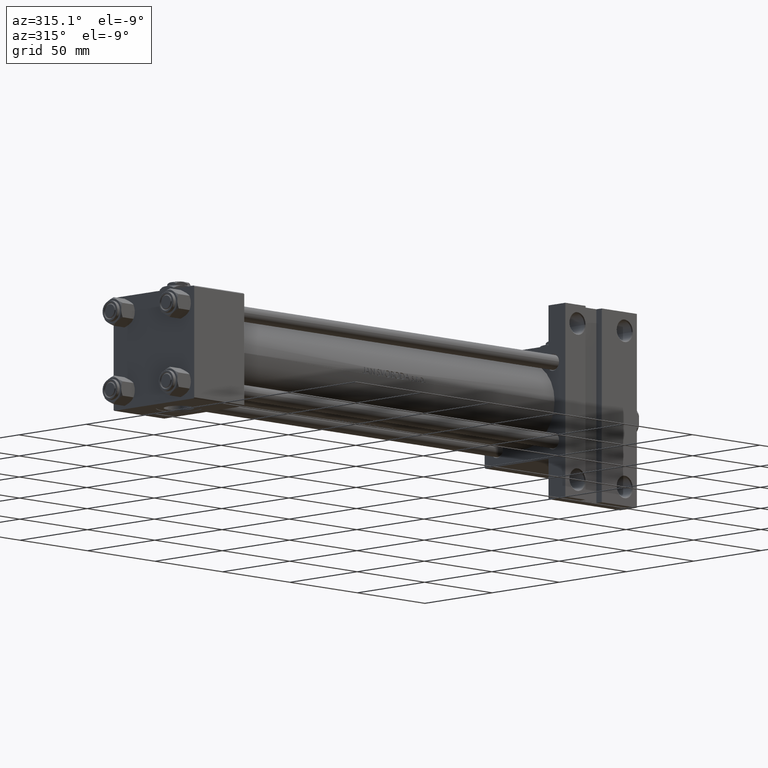
[diagram: clean part render]
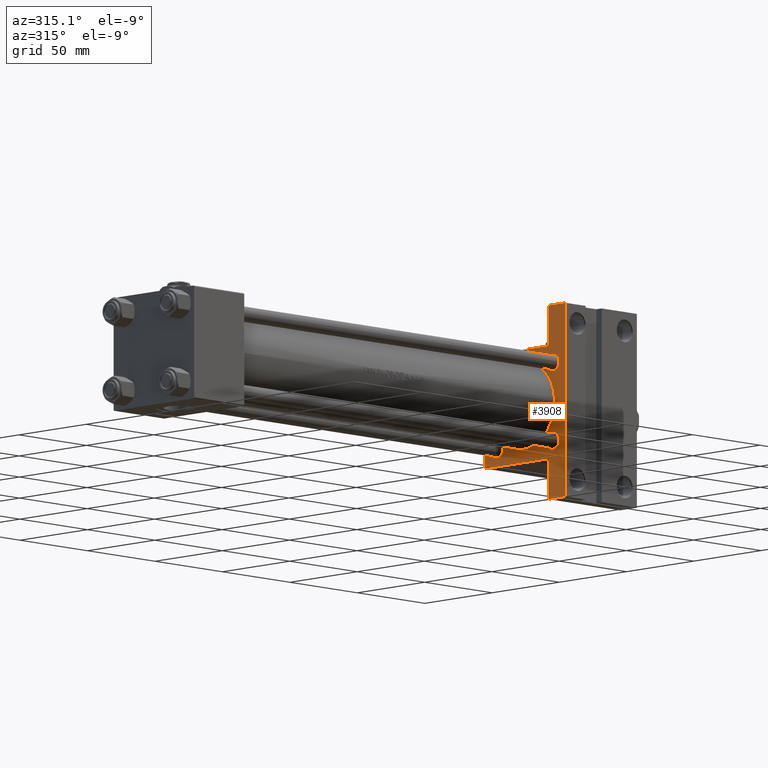
[diagram: same view with one face highlighted and labeled with its STEP entity id]
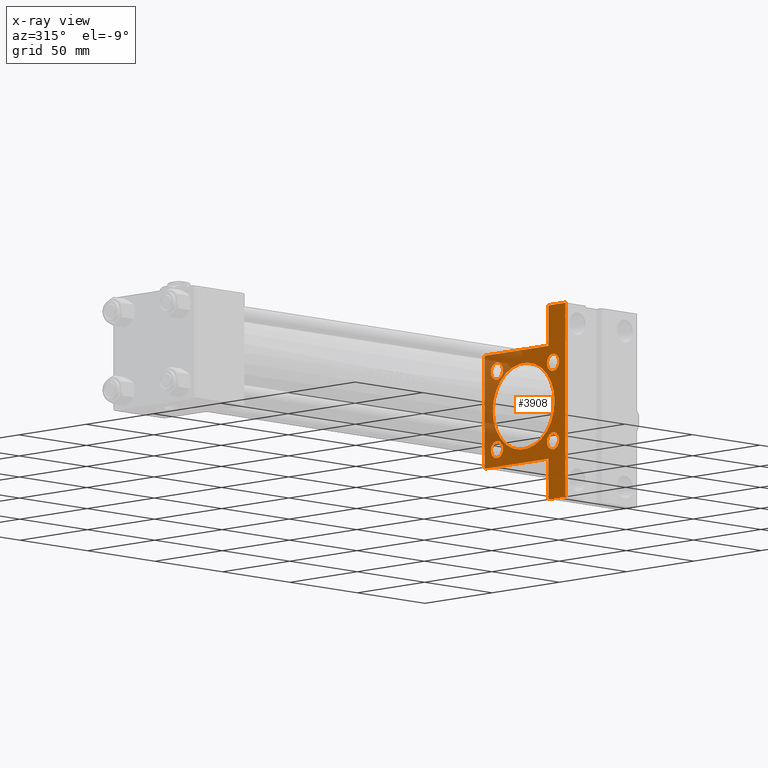
[diagram: x-ray of the same camera — body ghosted, the highlighted face saturated]
A machine part, auxiliary view. The second image highlights one B-rep face of the part: STEP entity #3908.
The next image is the same camera in x-ray: the body ghosted, the highlighted face saturated — about 23% of this face is hidden behind the body in this view.
In plain terms, the highlighted planar face has unit normal (-1, 0, -0).
Its self-contained STEP definition (entity closure, byte-faithful):
#609 = CARTESIAN_POINT ( 'NONE',  ( 274.9999999999999432, 20.84999999999999787, 20.85000000000000142 ) ) ;
#878 = DIRECTION ( 'NONE',  ( 0.000000000000000000, -1.000000000000000000, -1.156482317317871478E-16 ) ) ;
#1251 = CARTESIAN_POINT ( 'NONE',  ( 274.9999999999999432, -51.50000000000002132, -17.49999999999999645 ) ) ;
#1532 = EDGE_CURVE ( 'NONE', #34952, #16115, #6106, .T. ) ;
#2676 = CARTESIAN_POINT ( 'NONE',  ( 274.9999999999999432, 51.49999999999996447, -29.99999999999999645 ) ) ;
#3188 = VECTOR ( 'NONE', #38438, 1000.000000000000000 ) ;
#3279 = DIRECTION ( 'NONE',  ( -0.000000000000000000, 0.7071067811865671127, 0.7071067811865279218 ) ) ;
#3451 = DIRECTION ( 'NONE',  ( 0.000000000000000000, 0.000000000000000000, -1.000000000000000000 ) ) ;
#3707 = VERTEX_POINT ( 'NONE', #19154 ) ;
#3776 = EDGE_CURVE ( 'NONE', #26645, #9048, #11978, .T. ) ;
#3867 = CIRCLE ( 'NONE', #7968, 23.00000000000000000 ) ;
#3870 = ORIENTED_EDGE ( 'NONE', *, *, #48833, .T. ) ;
#3908 = ADVANCED_FACE ( 'NONE', ( #47404, #39975, #12227, #4796, #5056, #47659 ), #16849, .T. ) ;
#4250 = CARTESIAN_POINT ( 'NONE',  ( 274.9999999999999432, -20.84999999999999076, -20.85000000000000497 ) ) ;
#4480 = AXIS2_PLACEMENT_3D ( 'NONE', #4250, #35570, #46346 ) ;
#4730 = CARTESIAN_POINT ( 'NONE',  ( 274.9999999999999432, 29.75000000000082778, 29.74999999999917577 ) ) ;
#4796 = FACE_BOUND ( 'NONE', #40532, .T. ) ;
#5056 = FACE_BOUND ( 'NONE', #33603, .T. ) ;
#5102 = LINE ( 'NONE', #40276, #37334 ) ;
#5237 = EDGE_CURVE ( 'NONE', #20898, #37175, #32138, .T. ) ;
#5484 = CARTESIAN_POINT ( 'NONE',  ( 274.9999999999999432, 30.00000000000000000, 30.00000000000000000 ) ) ;
#5673 = DIRECTION ( 'NONE',  ( -0.000000000000000000, 1.000000000000000000, -0.000000000000000000 ) ) ;
#5927 = CIRCLE ( 'NONE', #17404, 4.500000000000007105 ) ;
#6106 = LINE ( 'NONE', #50519, #37179 ) ;
#6149 = EDGE_CURVE ( 'NONE', #37175, #20898, #5927, .T. ) ;
#6197 = DIRECTION ( 'NONE',  ( 0.000000000000000000, 0.000000000000000000, 1.000000000000000000 ) ) ;
#7082 = EDGE_CURVE ( 'NONE', #39058, #16258, #23971, .T. ) ;
#7379 = CARTESIAN_POINT ( 'NONE',  ( 274.9999999999999432, -1.224646799147354686E-16, 24.00000000000000000 ) ) ;
#7517 = VECTOR ( 'NONE', #5673, 1000.000000000000000 ) ;
#7825 = VERTEX_POINT ( 'NONE', #37660 ) ;
#7968 = AXIS2_PLACEMENT_3D ( 'NONE', #25610, #40805, #13082 ) ;
#8113 = VECTOR ( 'NONE', #24462, 1000.000000000000000 ) ;
#8310 = LINE ( 'NONE', #5484, #37855 ) ;
#8340 = ORIENTED_EDGE ( 'NONE', *, *, #19758, .T. ) ;
#8852 = CARTESIAN_POINT ( 'NONE',  ( 274.9999999999999432, -20.84999999999999076, 16.34999999999999787 ) ) ;
#9048 = VERTEX_POINT ( 'NONE', #2676 ) ;
#9545 = CARTESIAN_POINT ( 'NONE',  ( 274.9999999999999432, -20.84999999999999076, 20.85000000000000497 ) ) ;
#9675 = DIRECTION ( 'NONE',  ( 1.000000000000000000, -0.000000000000000000, 0.000000000000000000 ) ) ;
#9966 = LINE ( 'NONE', #40798, #46067 ) ;
#10050 = EDGE_LOOP ( 'NONE', ( #32308, #46024 ) ) ;
#10082 = EDGE_CURVE ( 'NONE', #50137, #41137, #23689, .T. ) ;
#10174 = EDGE_LOOP ( 'NONE', ( #50466, #36523, #10262, #28328, #22720, #13683, #32211, #29658, #16484, #44612 ) ) ;
#10262 = ORIENTED_EDGE ( 'NONE', *, *, #10082, .T. ) ;
#10664 = LINE ( 'NONE', #36882, #30155 ) ;
#10670 = VECTOR ( 'NONE', #48407, 1000.000000000000000 ) ;
#10790 = EDGE_LOOP ( 'NONE', ( #8340, #38828 ) ) ;
#11654 = CARTESIAN_POINT ( 'NONE',  ( 274.9999999999999432, 30.00000000000000000, 30.00000000000000000 ) ) ;
#11978 = LINE ( 'NONE', #47146, #3188 ) ;
#12202 = ORIENTED_EDGE ( 'NONE', *, *, #5237, .T. ) ;
#12227 = FACE_BOUND ( 'NONE', #10790, .T. ) ;
#12491 = DIRECTION ( 'NONE',  ( -1.000000000000000000, 0.000000000000000000, -0.000000000000000000 ) ) ;
#13082 = DIRECTION ( 'NONE',  ( 0.000000000000000000, 0.000000000000000000, -1.000000000000000000 ) ) ;
#13385 = EDGE_CURVE ( 'NONE', #29233, #33638, #5102, .T. ) ;
#13563 = AXIS2_PLACEMENT_3D ( 'NONE', #25308, #9675, #28925 ) ;
#13655 = DIRECTION ( 'NONE',  ( 1.000000000000000000, -0.000000000000000000, 0.000000000000000000 ) ) ;
#13683 = ORIENTED_EDGE ( 'NONE', *, *, #22722, .T. ) ;
#13879 = CARTESIAN_POINT ( 'NONE',  ( 274.9999999999999432, 20.84999999999999787, -20.85000000000000142 ) ) ;
#14180 = EDGE_CURVE ( 'NONE', #31514, #3707, #38992, .T. ) ;
#14600 = CARTESIAN_POINT ( 'NONE',  ( 274.9999999999999432, 2.694222958124176809E-15, -22.00000000000000000 ) ) ;
#14876 = VERTEX_POINT ( 'NONE', #28600 ) ;
#15156 = DIRECTION ( 'NONE',  ( 0.000000000000000000, 0.000000000000000000, 1.000000000000000000 ) ) ;
#15782 = DIRECTION ( 'NONE',  ( 0.000000000000000000, 0.000000000000000000, 1.000000000000000000 ) ) ;
#16115 = VERTEX_POINT ( 'NONE', #46805 ) ;
#16258 = VERTEX_POINT ( 'NONE', #33677 ) ;
#16484 = ORIENTED_EDGE ( 'NONE', *, *, #39647, .F. ) ;
#16727 = LINE ( 'NONE', #17728, #7517 ) ;
#16849 = PLANE ( 'NONE',  #48467 ) ;
#16964 = CIRCLE ( 'NONE', #33343, 4.500000000000007105 ) ;
#17244 = CARTESIAN_POINT ( 'NONE',  ( 274.9999999999999432, 20.84999999999999787, -20.85000000000000142 ) ) ;
#17404 = AXIS2_PLACEMENT_3D ( 'NONE', #40382, #13655, #6197 ) ;
#17433 = AXIS2_PLACEMENT_3D ( 'NONE', #609, #20600, #31404 ) ;
#17728 = CARTESIAN_POINT ( 'NONE',  ( 274.9999999999999432, 51.49999999999996447, -17.49999999999999645 ) ) ;
#19023 = CARTESIAN_POINT ( 'NONE',  ( 274.9999999999999432, -20.84999999999999076, -25.35000000000001208 ) ) ;
#19154 = CARTESIAN_POINT ( 'NONE',  ( 274.9999999999999432, 20.84999999999999787, -16.34999999999999432 ) ) ;
#19758 = EDGE_CURVE ( 'NONE', #3707, #31514, #16964, .T. ) ;
#20075 = CIRCLE ( 'NONE', #4480, 4.500000000000007105 ) ;
#20300 = CARTESIAN_POINT ( 'NONE',  ( 274.9999999999999432, 20.84999999999999787, -25.35000000000000853 ) ) ;
#20486 = CIRCLE ( 'NONE', #27855, 4.500000000000007105 ) ;
#20544 = VERTEX_POINT ( 'NONE', #26553 ) ;
#20600 = DIRECTION ( 'NONE',  ( 1.000000000000000000, -0.000000000000000000, 0.000000000000000000 ) ) ;
#20736 = DIRECTION ( 'NONE',  ( 0.000000000000000000, 0.000000000000000000, -1.000000000000000000 ) ) ;
#20898 = VERTEX_POINT ( 'NONE', #24864 ) ;
#20925 = EDGE_CURVE ( 'NONE', #44652, #36776, #3867, .T. ) ;
#21263 = DIRECTION ( 'NONE',  ( 0.000000000000000000, 0.000000000000000000, -1.000000000000000000 ) ) ;
#22720 = ORIENTED_EDGE ( 'NONE', *, *, #3776, .T. ) ;
#22722 = EDGE_CURVE ( 'NONE', #9048, #33638, #10664, .T. ) ;
#23689 = LINE ( 'NONE', #11654, #46265 ) ;
#23971 = CIRCLE ( 'NONE', #17433, 4.500000000000007105 ) ;
#24278 = LINE ( 'NONE', #48162, #10670 ) ;
#24462 = DIRECTION ( 'NONE',  ( 0.000000000000000000, 0.7071067811865279218, -0.7071067811865671127 ) ) ;
#24864 = CARTESIAN_POINT ( 'NONE',  ( 274.9999999999999432, -20.84999999999999076, 25.35000000000001208 ) ) ;
#25178 = DIRECTION ( 'NONE',  ( 1.000000000000000000, -0.000000000000000000, 0.000000000000000000 ) ) ;
#25308 = CARTESIAN_POINT ( 'NONE',  ( 274.9999999999999432, -20.84999999999999076, -20.85000000000000497 ) ) ;
#25335 = EDGE_CURVE ( 'NONE', #7825, #50137, #44508, .T. ) ;
#25610 = CARTESIAN_POINT ( 'NONE',  ( 274.9999999999999432, -1.224646799147354686E-16, 1.000000000000000888 ) ) ;
#26553 = CARTESIAN_POINT ( 'NONE',  ( 274.9999999999999432, -30.00000000000000000, -17.49999999999999645 ) ) ;
#26645 = VERTEX_POINT ( 'NONE', #38004 ) ;
#26679 = AXIS2_PLACEMENT_3D ( 'NONE', #13879, #45196, #15156 ) ;
#27280 = EDGE_CURVE ( 'NONE', #16258, #39058, #20486, .T. ) ;
#27855 = AXIS2_PLACEMENT_3D ( 'NONE', #34791, #50444, #15782 ) ;
#28134 = CARTESIAN_POINT ( 'NONE',  ( 274.9999999999999432, 0.000000000000000000, 0.000000000000000000 ) ) ;
#28328 = ORIENTED_EDGE ( 'NONE', *, *, #38421, .T. ) ;
#28406 = CARTESIAN_POINT ( 'NONE',  ( 274.9999999999999432, 20.84999999999999787, 25.35000000000000853 ) ) ;
#28600 = CARTESIAN_POINT ( 'NONE',  ( 274.9999999999999432, -20.84999999999999076, -16.34999999999999787 ) ) ;
#28925 = DIRECTION ( 'NONE',  ( 0.000000000000000000, 0.000000000000000000, 1.000000000000000000 ) ) ;
#29029 = DIRECTION ( 'NONE',  ( 0.000000000000000000, 0.000000000000000000, 1.000000000000000000 ) ) ;
#29233 = VERTEX_POINT ( 'NONE', #1251 ) ;
#29658 = ORIENTED_EDGE ( 'NONE', *, *, #31802, .T. ) ;
#30155 = VECTOR ( 'NONE', #45316, 1000.000000000000000 ) ;
#30637 = ORIENTED_EDGE ( 'NONE', *, *, #39047, .T. ) ;
#31404 = DIRECTION ( 'NONE',  ( 0.000000000000000000, 0.000000000000000000, 1.000000000000000000 ) ) ;
#31451 = VERTEX_POINT ( 'NONE', #19023 ) ;
#31514 = VERTEX_POINT ( 'NONE', #20300 ) ;
#31802 = EDGE_CURVE ( 'NONE', #29233, #20544, #24278, .T. ) ;
#32138 = CIRCLE ( 'NONE', #44454, 4.500000000000007105 ) ;
#32211 = ORIENTED_EDGE ( 'NONE', *, *, #13385, .F. ) ;
#32308 = ORIENTED_EDGE ( 'NONE', *, *, #7082, .T. ) ;
#32369 = CIRCLE ( 'NONE', #13563, 4.500000000000007105 ) ;
#32844 = CARTESIAN_POINT ( 'NONE',  ( 274.9999999999999432, 30.00000000000000000, 29.50000000000000000 ) ) ;
#33343 = AXIS2_PLACEMENT_3D ( 'NONE', #17244, #36511, #29029 ) ;
#33464 = CARTESIAN_POINT ( 'NONE',  ( 274.9999999999999432, -30.00000000000000000, 29.50000000000001776 ) ) ;
#33603 = EDGE_LOOP ( 'NONE', ( #30637, #42156 ) ) ;
#33638 = VERTEX_POINT ( 'NONE', #44385 ) ;
#33677 = CARTESIAN_POINT ( 'NONE',  ( 274.9999999999999432, 20.84999999999999787, 16.34999999999999432 ) ) ;
#34791 = CARTESIAN_POINT ( 'NONE',  ( 274.9999999999999432, 20.84999999999999787, 20.85000000000000142 ) ) ;
#34952 = VERTEX_POINT ( 'NONE', #33464 ) ;
#35106 = ORIENTED_EDGE ( 'NONE', *, *, #49195, .T. ) ;
#35570 = DIRECTION ( 'NONE',  ( 1.000000000000000000, -0.000000000000000000, 0.000000000000000000 ) ) ;
#36127 = CARTESIAN_POINT ( 'NONE',  ( 274.9999999999999432, -1.224646799147354686E-16, 1.000000000000000888 ) ) ;
#36511 = DIRECTION ( 'NONE',  ( 1.000000000000000000, -0.000000000000000000, 0.000000000000000000 ) ) ;
#36523 = ORIENTED_EDGE ( 'NONE', *, *, #25335, .T. ) ;
#36776 = VERTEX_POINT ( 'NONE', #7379 ) ;
#36882 = CARTESIAN_POINT ( 'NONE',  ( 274.9999999999999432, 30.00000000000000000, -29.99999999999999289 ) ) ;
#37060 = CIRCLE ( 'NONE', #50177, 23.00000000000000000 ) ;
#37175 = VERTEX_POINT ( 'NONE', #8852 ) ;
#37179 = VECTOR ( 'NONE', #3279, 1000.000000000000000 ) ;
#37334 = VECTOR ( 'NONE', #20736, 1000.000000000000000 ) ;
#37660 = CARTESIAN_POINT ( 'NONE',  ( 274.9999999999999432, 29.50000000000002487, 30.00000000000000000 ) ) ;
#37855 = VECTOR ( 'NONE', #878, 1000.000000000000000 ) ;
#38004 = CARTESIAN_POINT ( 'NONE',  ( 274.9999999999999432, 51.49999999999996447, -17.49999999999999645 ) ) ;
#38421 = EDGE_CURVE ( 'NONE', #41137, #26645, #16727, .T. ) ;
#38438 = DIRECTION ( 'NONE',  ( 0.000000000000000000, 0.000000000000000000, -1.000000000000000000 ) ) ;
#38828 = ORIENTED_EDGE ( 'NONE', *, *, #14180, .T. ) ;
#38992 = CIRCLE ( 'NONE', #26679, 4.500000000000007105 ) ;
#39047 = EDGE_CURVE ( 'NONE', #36776, #44652, #37060, .T. ) ;
#39058 = VERTEX_POINT ( 'NONE', #28406 ) ;
#39647 = EDGE_CURVE ( 'NONE', #34952, #20544, #9966, .T. ) ;
#39975 = FACE_BOUND ( 'NONE', #10050, .T. ) ;
#40276 = CARTESIAN_POINT ( 'NONE',  ( 274.9999999999999432, -51.50000000000002132, -17.49999999999999645 ) ) ;
#40382 = CARTESIAN_POINT ( 'NONE',  ( 274.9999999999999432, -20.84999999999999076, 20.85000000000000497 ) ) ;
#40532 = EDGE_LOOP ( 'NONE', ( #35106, #3870 ) ) ;
#40798 = CARTESIAN_POINT ( 'NONE',  ( 274.9999999999999432, -30.00000000000000000, 29.99999999999999289 ) ) ;
#40805 = DIRECTION ( 'NONE',  ( 1.000000000000000000, 0.000000000000000000, 0.000000000000000000 ) ) ;
#40863 = DIRECTION ( 'NONE',  ( 0.000000000000000000, 0.000000000000000000, 1.000000000000000000 ) ) ;
#41137 = VERTEX_POINT ( 'NONE', #43008 ) ;
#42156 = ORIENTED_EDGE ( 'NONE', *, *, #20925, .T. ) ;
#42690 = EDGE_CURVE ( 'NONE', #7825, #16115, #8310, .T. ) ;
#42864 = EDGE_LOOP ( 'NONE', ( #12202, #48806 ) ) ;
#43008 = CARTESIAN_POINT ( 'NONE',  ( 274.9999999999999432, 30.00000000000000000, -17.49999999999998224 ) ) ;
#43804 = DIRECTION ( 'NONE',  ( -0.000000000000000000, 0.000000000000000000, 1.000000000000000000 ) ) ;
#44075 = DIRECTION ( 'NONE',  ( 0.000000000000000000, 0.000000000000000000, -1.000000000000000000 ) ) ;
#44385 = CARTESIAN_POINT ( 'NONE',  ( 274.9999999999999432, -51.50000000000002132, -29.99999999999999645 ) ) ;
#44454 = AXIS2_PLACEMENT_3D ( 'NONE', #9545, #25178, #40863 ) ;
#44508 = LINE ( 'NONE', #4730, #8113 ) ;
#44612 = ORIENTED_EDGE ( 'NONE', *, *, #1532, .T. ) ;
#44652 = VERTEX_POINT ( 'NONE', #14600 ) ;
#44832 = DIRECTION ( 'NONE',  ( 1.000000000000000000, 0.000000000000000000, 0.000000000000000000 ) ) ;
#45196 = DIRECTION ( 'NONE',  ( 1.000000000000000000, -0.000000000000000000, 0.000000000000000000 ) ) ;
#45316 = DIRECTION ( 'NONE',  ( 0.000000000000000000, -1.000000000000000000, -1.156482317317871478E-16 ) ) ;
#46024 = ORIENTED_EDGE ( 'NONE', *, *, #27280, .T. ) ;
#46067 = VECTOR ( 'NONE', #21263, 1000.000000000000000 ) ;
#46265 = VECTOR ( 'NONE', #3451, 1000.000000000000000 ) ;
#46346 = DIRECTION ( 'NONE',  ( 0.000000000000000000, 0.000000000000000000, 1.000000000000000000 ) ) ;
#46805 = CARTESIAN_POINT ( 'NONE',  ( 274.9999999999999432, -29.50000000000000000, 29.99999999999999289 ) ) ;
#47146 = CARTESIAN_POINT ( 'NONE',  ( 274.9999999999999432, 51.49999999999996447, -17.49999999999999645 ) ) ;
#47404 = FACE_BOUND ( 'NONE', #42864, .T. ) ;
#47659 = FACE_OUTER_BOUND ( 'NONE', #10174, .T. ) ;
#48162 = CARTESIAN_POINT ( 'NONE',  ( 274.9999999999999432, -51.50000000000002132, -17.49999999999999645 ) ) ;
#48407 = DIRECTION ( 'NONE',  ( 0.000000000000000000, 1.000000000000000000, 0.000000000000000000 ) ) ;
#48467 = AXIS2_PLACEMENT_3D ( 'NONE', #28134, #12491, #43804 ) ;
#48806 = ORIENTED_EDGE ( 'NONE', *, *, #6149, .T. ) ;
#48833 = EDGE_CURVE ( 'NONE', #31451, #14876, #20075, .T. ) ;
#49195 = EDGE_CURVE ( 'NONE', #14876, #31451, #32369, .T. ) ;
#50137 = VERTEX_POINT ( 'NONE', #32844 ) ;
#50177 = AXIS2_PLACEMENT_3D ( 'NONE', #36127, #44832, #44075 ) ;
#50444 = DIRECTION ( 'NONE',  ( 1.000000000000000000, -0.000000000000000000, 0.000000000000000000 ) ) ;
#50466 = ORIENTED_EDGE ( 'NONE', *, *, #42690, .F. ) ;
#50519 = CARTESIAN_POINT ( 'NONE',  ( 274.9999999999999432, -29.74999999999917577, 29.75000000000082778 ) ) ;